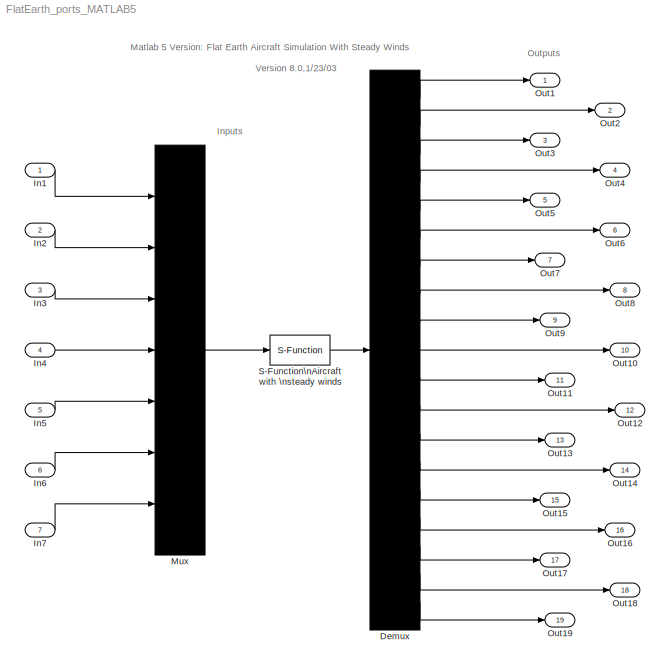
MODEL FlatEarth_ports_MATLAB5
KIND model
CONFIG AbsTol = auto
CONFIG FixedStep = auto
CONFIG MaxStep = auto
CONFIG RelTol = 1e-3
CONFIG Solver = ode45
CONFIG StartTime = 0.0
CONFIG StopTime = 10.0
BLOCK [Demux] Demux
  Outputs = 19
  Ports = [1, 19, 0, 0, 0]
BLOCK [Inport] In1
  Port = 1
  PortWidth = -1
  SampleTime = -1
BLOCK [Inport] In2
  Port = 2
  PortWidth = -1
  SampleTime = -1
BLOCK [Inport] In3
  Port = 3
  PortWidth = -1
  SampleTime = -1
BLOCK [Inport] In4
  Port = 4
  PortWidth = -1
  SampleTime = -1
BLOCK [Inport] In5
  Port = 5
  PortWidth = -1
  SampleTime = -1
BLOCK [Inport] In6
  Port = 6
  PortWidth = -1
  SampleTime = -1
BLOCK [Inport] In7
  Port = 7
  PortWidth = -1
  SampleTime = -1
BLOCK [Mux] Mux
  Inputs = 7
  Ports = [7, 1, 0, 0, 0]
BLOCK [Outport] Out1
  InitialOutput = []
  OutputWhenDisabled = held
  Port = 1
BLOCK [Outport] Out10
  InitialOutput = []
  OutputWhenDisabled = held
  Port = 10
BLOCK [Outport] Out11
  InitialOutput = []
  OutputWhenDisabled = held
  Port = 11
BLOCK [Outport] Out12
  InitialOutput = []
  OutputWhenDisabled = held
  Port = 12
BLOCK [Outport] Out13
  InitialOutput = []
  OutputWhenDisabled = held
  Port = 13
BLOCK [Outport] Out14
  InitialOutput = []
  OutputWhenDisabled = held
  Port = 14
BLOCK [Outport] Out15
  InitialOutput = []
  OutputWhenDisabled = held
  Port = 15
BLOCK [Outport] Out16
  InitialOutput = []
  OutputWhenDisabled = held
  Port = 16
BLOCK [Outport] Out17
  InitialOutput = []
  OutputWhenDisabled = held
  Port = 17
BLOCK [Outport] Out18
  InitialOutput = []
  OutputWhenDisabled = held
  Port = 18
BLOCK [Outport] Out19
  InitialOutput = []
  OutputWhenDisabled = held
  Port = 19
BLOCK [Outport] Out2
  InitialOutput = []
  OutputWhenDisabled = held
  Port = 2
BLOCK [Outport] Out3
  InitialOutput = []
  OutputWhenDisabled = held
  Port = 3
BLOCK [Outport] Out4
  InitialOutput = []
  OutputWhenDisabled = held
  Port = 4
BLOCK [Outport] Out5
  InitialOutput = []
  OutputWhenDisabled = held
  Port = 5
BLOCK [Outport] Out6
  InitialOutput = []
  OutputWhenDisabled = held
  Port = 6
BLOCK [Outport] Out7
  InitialOutput = []
  OutputWhenDisabled = held
  Port = 7
BLOCK [Outport] Out8
  InitialOutput = []
  OutputWhenDisabled = held
  Port = 8
BLOCK [Outport] Out9
  InitialOutput = []
  OutputWhenDisabled = held
  Port = 9
BLOCK [S-Function] S-Function\nAircraft with \nsteady winds
  FunctionName = aircraft7
  Parameters = constant,xIC
  PortCounts = []
  Ports = [1, 1, 0, 0, 0]
  SFunctionModules = ''
LINE Demux:1 -> Out1:1
LINE Demux:10 -> Out10:1
LINE Demux:11 -> Out11:1
LINE Demux:12 -> Out12:1
LINE Demux:13 -> Out13:1
LINE Demux:14 -> Out14:1
LINE Demux:15 -> Out15:1
LINE Demux:16 -> Out16:1
LINE Demux:17 -> Out17:1
LINE Demux:18 -> Out18:1
LINE Demux:19 -> Out19:1
LINE Demux:2 -> Out2:1
LINE Demux:3 -> Out3:1
LINE Demux:4 -> Out4:1
LINE Demux:5 -> Out5:1
LINE Demux:6 -> Out6:1
LINE Demux:7 -> Out7:1
LINE Demux:8 -> Out8:1
LINE Demux:9 -> Out9:1
LINE In1:1 -> Mux:1
LINE In2:1 -> Mux:2
LINE In3:1 -> Mux:3
LINE In4:1 -> Mux:4
LINE In5:1 -> Mux:5
LINE In6:1 -> Mux:6
LINE In7:1 -> Mux:7
LINE Mux:1 -> S-Function\nAircraft with \nsteady winds:1
LINE S-Function\nAircraft with \nsteady winds:1 -> Demux:1
